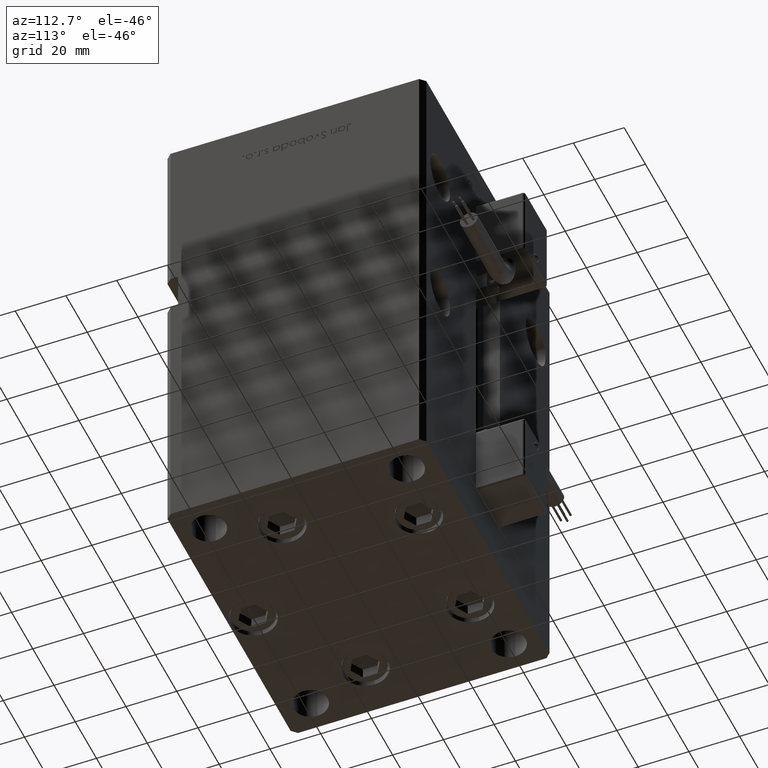
[diagram: clean part render]
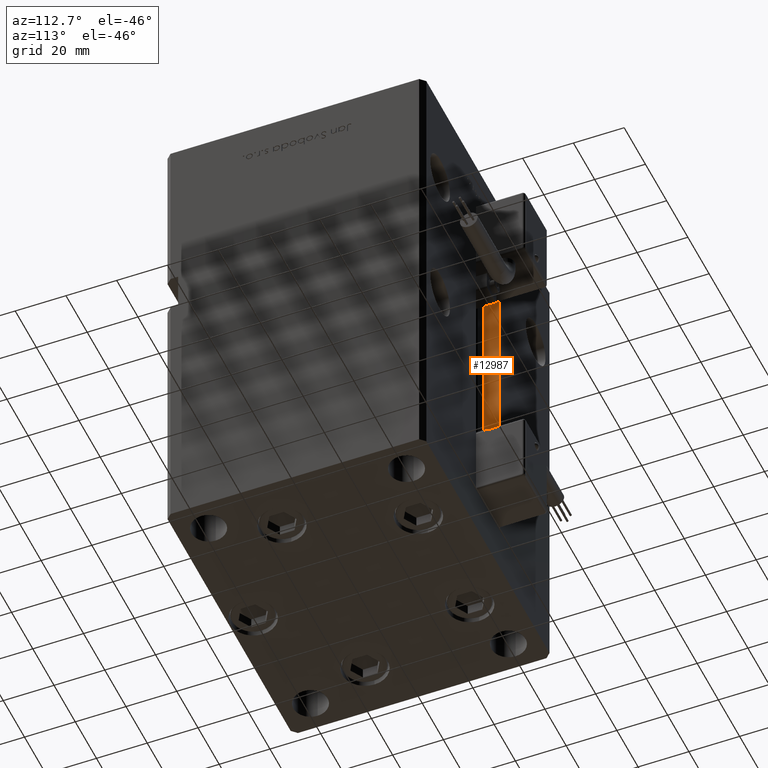
[diagram: same view with one face highlighted and labeled with its STEP entity id]
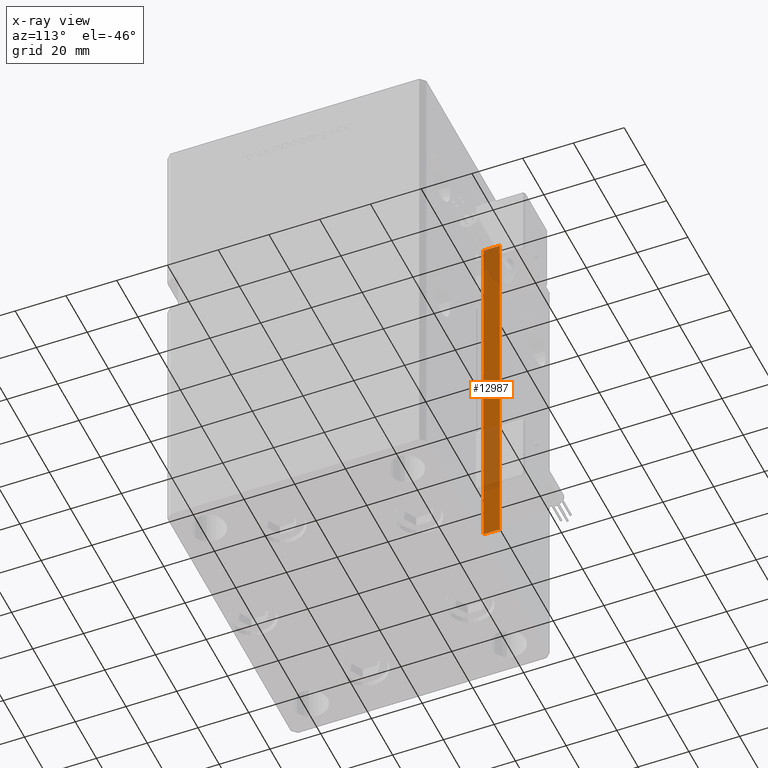
[diagram: x-ray of the same camera — body ghosted, the highlighted face saturated]
A machine part, auxiliary view. The second image highlights one B-rep face of the part: STEP entity #12987.
The next image is the same camera in x-ray: the body ghosted, the highlighted face saturated — about 32% of this face is hidden behind the body in this view.
In plain terms, the highlighted planar face has unit normal (-1, 0, 0).
Its self-contained STEP definition (entity closure, byte-faithful):
#1179 = AXIS2_PLACEMENT_3D ( 'NONE', #41117, #46228, #54480 ) ;
#2033 = EDGE_CURVE ( 'NONE', #27305, #4826, #46883, .T. ) ;
#2510 = VECTOR ( 'NONE', #7926, 1000.000000000000000 ) ;
#2552 = ORIENTED_EDGE ( 'NONE', *, *, #53027, .F. ) ;
#3297 = DIRECTION ( 'NONE',  ( 0.000000000000000000, 1.000000000000000000, 0.000000000000000000 ) ) ;
#4824 = CARTESIAN_POINT ( 'NONE',  ( -11.24999999999999822, 44.50000000000000711, 148.5000000000000000 ) ) ;
#4826 = VERTEX_POINT ( 'NONE', #40706 ) ;
#7429 = EDGE_LOOP ( 'NONE', ( #2552, #55512, #25822, #48273 ) ) ;
#7562 = CARTESIAN_POINT ( 'NONE',  ( -11.24999999999999822, 44.50000000000000711, 0.000000000000000000 ) ) ;
#7923 = DIRECTION ( 'NONE',  ( -0.000000000000000000, -1.000000000000000000, -0.000000000000000000 ) ) ;
#7926 = DIRECTION ( 'NONE',  ( -0.000000000000000000, -0.000000000000000000, 1.000000000000000000 ) ) ;
#8151 = CARTESIAN_POINT ( 'NONE',  ( -11.24999999999999822, 51.00000000000000711, 0.000000000000000000 ) ) ;
#10965 = FACE_OUTER_BOUND ( 'NONE', #7429, .T. ) ;
#12987 = ADVANCED_FACE ( 'NONE', ( #10965 ), #19499, .F. ) ;
#15481 = VECTOR ( 'NONE', #7923, 1000.000000000000000 ) ;
#19499 = PLANE ( 'NONE',  #1179 ) ;
#19918 = VECTOR ( 'NONE', #41989, 1000.000000000000000 ) ;
#20447 = CARTESIAN_POINT ( 'NONE',  ( -11.24999999999999822, 51.00000000000000711, 0.000000000000000000 ) ) ;
#25822 = ORIENTED_EDGE ( 'NONE', *, *, #44740, .T. ) ;
#27305 = VERTEX_POINT ( 'NONE', #8151 ) ;
#33163 = VERTEX_POINT ( 'NONE', #4824 ) ;
#37808 = LINE ( 'NONE', #20447, #2510 ) ;
#40706 = CARTESIAN_POINT ( 'NONE',  ( -11.24999999999999822, 44.50000000000000711, 0.000000000000000000 ) ) ;
#40820 = VECTOR ( 'NONE', #3297, 1000.000000000000000 ) ;
#41117 = CARTESIAN_POINT ( 'NONE',  ( -11.24999999999999822, 44.50000000000000711, 0.000000000000000000 ) ) ;
#41709 = LINE ( 'NONE', #7562, #19918 ) ;
#41989 = DIRECTION ( 'NONE',  ( -0.000000000000000000, -0.000000000000000000, 1.000000000000000000 ) ) ;
#42920 = VERTEX_POINT ( 'NONE', #54222 ) ;
#44740 = EDGE_CURVE ( 'NONE', #27305, #42920, #37808, .T. ) ;
#46228 = DIRECTION ( 'NONE',  ( -1.000000000000000000, 0.000000000000000000, 0.000000000000000000 ) ) ;
#46883 = LINE ( 'NONE', #50879, #15481 ) ;
#48273 = ORIENTED_EDGE ( 'NONE', *, *, #54178, .F. ) ;
#50806 = LINE ( 'NONE', #51085, #40820 ) ;
#50879 = CARTESIAN_POINT ( 'NONE',  ( -11.24999999999999822, 44.50000000000000711, 0.000000000000000000 ) ) ;
#51085 = CARTESIAN_POINT ( 'NONE',  ( -11.24999999999999822, 0.000000000000000000, 148.5000000000000000 ) ) ;
#53027 = EDGE_CURVE ( 'NONE', #4826, #33163, #41709, .T. ) ;
#54178 = EDGE_CURVE ( 'NONE', #33163, #42920, #50806, .T. ) ;
#54222 = CARTESIAN_POINT ( 'NONE',  ( -11.24999999999999822, 51.00000000000000711, 148.5000000000000000 ) ) ;
#54480 = DIRECTION ( 'NONE',  ( 0.000000000000000000, 0.000000000000000000, 1.000000000000000000 ) ) ;
#55512 = ORIENTED_EDGE ( 'NONE', *, *, #2033, .F. ) ;